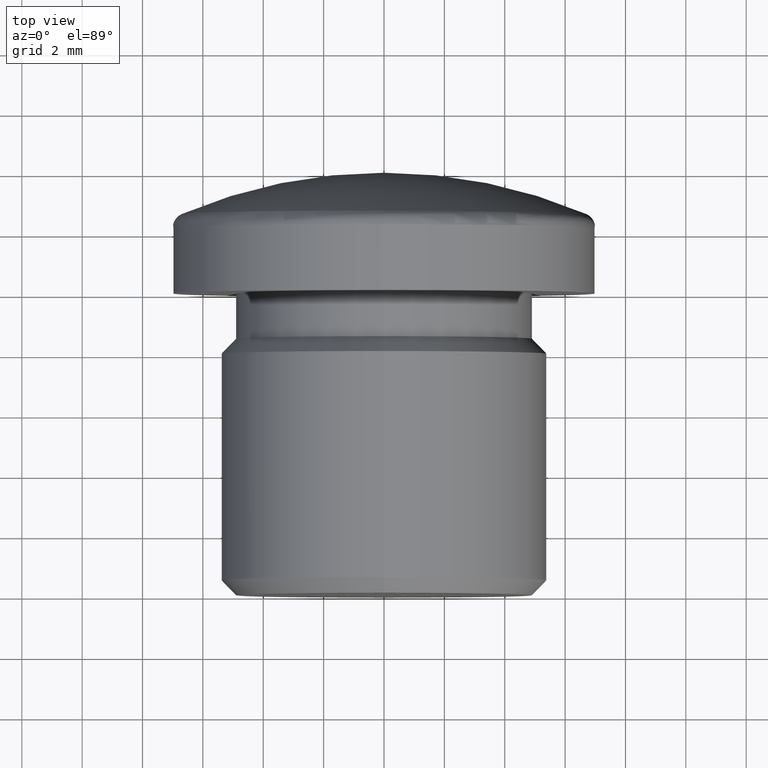
[diagram: clean part render]
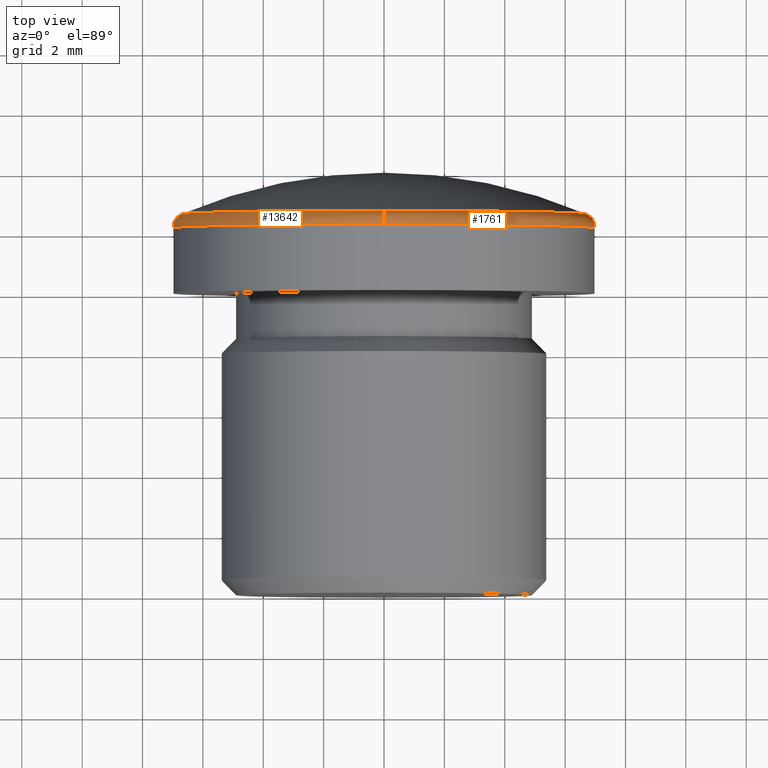
[diagram: same view with one multi-face feature highlighted, each face labeled with its STEP entity id]
A machine part, top view. The highlighted faces form ONE feature: a constant-radius fillet chain: 2 tangent blend faces with common blend radius 0.5 mm. The faces share edges in the B-rep.
Their STEP definitions:
[1] entity #13642 (Torus):
#123 = CARTESIAN_POINT ( 'NONE',  ( 0.0000000000000000000, 12.63303173506918500, -6.695979899497487500 ) ) ;
#312 = AXIS2_PLACEMENT_3D ( 'NONE', #7798, #11296, #4549 ) ;
#796 = DIRECTION ( 'NONE',  ( 0.0000000000000000000, 0.0000000000000000000, -1.000000000000000000 ) ) ;
#1061 = DIRECTION ( 'NONE',  ( -0.0000000000000000000, -1.000000000000000000, -0.0000000000000000000 ) ) ;
#1352 = VERTEX_POINT ( 'NONE', #123 ) ;
#1384 = EDGE_CURVE ( 'NONE', #11603, #12416, #13295, .T. ) ;
#1560 = AXIS2_PLACEMENT_3D ( 'NONE', #5250, #11890, #796 ) ;
#1908 = EDGE_CURVE ( 'NONE', #1352, #8156, #13113, .T. ) ;
#1980 = EDGE_CURVE ( 'NONE', #1352, #9839, #12246, .T. ) ;
#2622 = CARTESIAN_POINT ( 'NONE',  ( 7.960204194457790500E-016, 12.17304056233545900, 6.499999999999997300 ) ) ;
#2970 = AXIS2_PLACEMENT_3D ( 'NONE', #8734, #3177, #14289 ) ;
#3177 = DIRECTION ( 'NONE',  ( -1.000000000000000000, 0.0000000000000000000, 0.0000000000000000000 ) ) ;
#3655 = ORIENTED_EDGE ( 'NONE', *, *, #3662, .F. ) ;
#3662 = EDGE_CURVE ( 'NONE', #12416, #8156, #4738, .T. ) ;
#4290 = FACE_OUTER_BOUND ( 'NONE', #13817, .T. ) ;
#4549 = DIRECTION ( 'NONE',  ( 0.0000000000000000000, 0.0000000000000000000, -1.000000000000000000 ) ) ;
#4679 = CARTESIAN_POINT ( 'NONE',  ( -6.695979899497491900, 12.63303173506918500, 8.200210351074618600E-016 ) ) ;
#4738 = CIRCLE ( 'NONE', #12469, 6.999999999999997300 ) ;
#5062 = DIRECTION ( 'NONE',  ( 1.000000000000000000, 0.0000000000000000000, -1.224646799147353000E-016 ) ) ;
#5250 = CARTESIAN_POINT ( 'NONE',  ( 0.0000000000000000000, 12.63303173506918500, 0.0000000000000000000 ) ) ;
#5445 = CARTESIAN_POINT ( 'NONE',  ( 8.572527594031470200E-016, 12.17304056233545900, 6.999999999999997300 ) ) ;
#5517 = CARTESIAN_POINT ( 'NONE',  ( 0.0000000000000000000, 12.17304056233545900, 0.0000000000000000000 ) ) ;
#6608 = DIRECTION ( 'NONE',  ( 0.0000000000000000000, 0.0000000000000000000, -1.000000000000000000 ) ) ;
#7227 = CIRCLE ( 'NONE', #1560, 6.695979899497487500 ) ;
#7382 = ORIENTED_EDGE ( 'NONE', *, *, #1384, .F. ) ;
#7444 = CARTESIAN_POINT ( 'NONE',  ( 8.386368972553040500E-016, 12.63303173506918500, 6.695979899497487500 ) ) ;
#7798 = CARTESIAN_POINT ( 'NONE',  ( 0.0000000000000000000, 12.63303173506918500, 0.0000000000000000000 ) ) ;
#8156 = VERTEX_POINT ( 'NONE', #14322 ) ;
#8734 = CARTESIAN_POINT ( 'NONE',  ( 0.0000000000000000000, 12.17304056233545900, -6.499999999999997300 ) ) ;
#8788 = ORIENTED_EDGE ( 'NONE', *, *, #1908, .T. ) ;
#9717 = AXIS2_PLACEMENT_3D ( 'NONE', #5517, #12130, #6608 ) ;
#9839 = VERTEX_POINT ( 'NONE', #4679 ) ;
#10445 = EDGE_CURVE ( 'NONE', #9839, #11603, #7227, .T. ) ;
#11296 = DIRECTION ( 'NONE',  ( 0.0000000000000000000, 1.000000000000000000, 0.0000000000000000000 ) ) ;
#11545 = ORIENTED_EDGE ( 'NONE', *, *, #1980, .F. ) ;
#11603 = VERTEX_POINT ( 'NONE', #7444 ) ;
#11697 = DIRECTION ( 'NONE',  ( -1.224646799147351500E-016, 0.0000000000000000000, -1.000000000000000000 ) ) ;
#11890 = DIRECTION ( 'NONE',  ( 0.0000000000000000000, 1.000000000000000000, 0.0000000000000000000 ) ) ;
#12130 = DIRECTION ( 'NONE',  ( -0.0000000000000000000, -1.000000000000000000, -0.0000000000000000000 ) ) ;
#12246 = CIRCLE ( 'NONE', #312, 6.695979899497487500 ) ;
#12416 = VERTEX_POINT ( 'NONE', #5445 ) ;
#12469 = AXIS2_PLACEMENT_3D ( 'NONE', #13393, #1061, #13342 ) ;
#12930 = ORIENTED_EDGE ( 'NONE', *, *, #10445, .F. ) ;
#13113 = CIRCLE ( 'NONE', #2970, 0.5000000000000004400 ) ;
#13294 = TOROIDAL_SURFACE ( 'NONE', #9717, 6.499999999999997300, 0.5000000000000000000 ) ;
#13295 = CIRCLE ( 'NONE', #14053, 0.5000000000000004400 ) ;
#13342 = DIRECTION ( 'NONE',  ( 0.0000000000000000000, 0.0000000000000000000, -1.000000000000000000 ) ) ;
#13393 = CARTESIAN_POINT ( 'NONE',  ( 0.0000000000000000000, 12.17304056233545900, 0.0000000000000000000 ) ) ;
#13642 = ADVANCED_FACE ( 'NONE', ( #4290 ), #13294, .T. ) ;
#13817 = EDGE_LOOP ( 'NONE', ( #7382, #12930, #11545, #8788, #3655 ) ) ;
#14053 = AXIS2_PLACEMENT_3D ( 'NONE', #2622, #5062, #11697 ) ;
#14289 = DIRECTION ( 'NONE',  ( 0.0000000000000000000, 0.0000000000000000000, 1.000000000000000000 ) ) ;
#14322 = CARTESIAN_POINT ( 'NONE',  ( 0.0000000000000000000, 12.17304056233545900, -6.999999999999997300 ) ) ;
[2] entity #1761 (Torus):
#123 = CARTESIAN_POINT ( 'NONE',  ( 0.0000000000000000000, 12.63303173506918500, -6.695979899497487500 ) ) ;
#724 = AXIS2_PLACEMENT_3D ( 'NONE', #8073, #12576, #5724 ) ;
#1352 = VERTEX_POINT ( 'NONE', #123 ) ;
#1384 = EDGE_CURVE ( 'NONE', #11603, #12416, #13295, .T. ) ;
#1761 = ADVANCED_FACE ( 'NONE', ( #12441 ), #10494, .T. ) ;
#1908 = EDGE_CURVE ( 'NONE', #1352, #8156, #13113, .T. ) ;
#2497 = ORIENTED_EDGE ( 'NONE', *, *, #1384, .T. ) ;
#2622 = CARTESIAN_POINT ( 'NONE',  ( 7.960204194457790500E-016, 12.17304056233545900, 6.499999999999997300 ) ) ;
#2970 = AXIS2_PLACEMENT_3D ( 'NONE', #8734, #3177, #14289 ) ;
#3111 = ORIENTED_EDGE ( 'NONE', *, *, #11477, .F. ) ;
#3177 = DIRECTION ( 'NONE',  ( -1.000000000000000000, 0.0000000000000000000, 0.0000000000000000000 ) ) ;
#3278 = AXIS2_PLACEMENT_3D ( 'NONE', #13988, #7259, #8376 ) ;
#3502 = ORIENTED_EDGE ( 'NONE', *, *, #10310, .F. ) ;
#4918 = DIRECTION ( 'NONE',  ( -0.0000000000000000000, -1.000000000000000000, -0.0000000000000000000 ) ) ;
#5062 = DIRECTION ( 'NONE',  ( 1.000000000000000000, 0.0000000000000000000, -1.224646799147353000E-016 ) ) ;
#5445 = CARTESIAN_POINT ( 'NONE',  ( 8.572527594031470200E-016, 12.17304056233545900, 6.999999999999997300 ) ) ;
#5724 = DIRECTION ( 'NONE',  ( 0.0000000000000000000, 0.0000000000000000000, -1.000000000000000000 ) ) ;
#5800 = ORIENTED_EDGE ( 'NONE', *, *, #1908, .F. ) ;
#7066 = CIRCLE ( 'NONE', #3278, 6.695979899497487500 ) ;
#7259 = DIRECTION ( 'NONE',  ( 0.0000000000000000000, 1.000000000000000000, 0.0000000000000000000 ) ) ;
#7444 = CARTESIAN_POINT ( 'NONE',  ( 8.386368972553040500E-016, 12.63303173506918500, 6.695979899497487500 ) ) ;
#7606 = EDGE_LOOP ( 'NONE', ( #11675, #2497, #3111, #5800, #3502 ) ) ;
#8073 = CARTESIAN_POINT ( 'NONE',  ( 0.0000000000000000000, 12.17304056233545900, 0.0000000000000000000 ) ) ;
#8156 = VERTEX_POINT ( 'NONE', #14322 ) ;
#8376 = DIRECTION ( 'NONE',  ( 0.0000000000000000000, 0.0000000000000000000, -1.000000000000000000 ) ) ;
#8680 = VERTEX_POINT ( 'NONE', #12331 ) ;
#8734 = CARTESIAN_POINT ( 'NONE',  ( 0.0000000000000000000, 12.17304056233545900, -6.499999999999997300 ) ) ;
#10088 = AXIS2_PLACEMENT_3D ( 'NONE', #10576, #4918, #10622 ) ;
#10310 = EDGE_CURVE ( 'NONE', #8680, #1352, #7066, .T. ) ;
#10494 = TOROIDAL_SURFACE ( 'NONE', #10088, 6.499999999999997300, 0.5000000000000000000 ) ;
#10576 = CARTESIAN_POINT ( 'NONE',  ( 0.0000000000000000000, 12.17304056233545900, 0.0000000000000000000 ) ) ;
#10622 = DIRECTION ( 'NONE',  ( 0.0000000000000000000, 0.0000000000000000000, -1.000000000000000000 ) ) ;
#11069 = AXIS2_PLACEMENT_3D ( 'NONE', #11219, #11121, #14606 ) ;
#11121 = DIRECTION ( 'NONE',  ( 0.0000000000000000000, 1.000000000000000000, 0.0000000000000000000 ) ) ;
#11219 = CARTESIAN_POINT ( 'NONE',  ( 0.0000000000000000000, 12.63303173506918500, 0.0000000000000000000 ) ) ;
#11477 = EDGE_CURVE ( 'NONE', #8156, #12416, #12810, .T. ) ;
#11603 = VERTEX_POINT ( 'NONE', #7444 ) ;
#11675 = ORIENTED_EDGE ( 'NONE', *, *, #14563, .F. ) ;
#11697 = DIRECTION ( 'NONE',  ( -1.224646799147351500E-016, 0.0000000000000000000, -1.000000000000000000 ) ) ;
#12331 = CARTESIAN_POINT ( 'NONE',  ( 6.695979899497491900, 12.63303173506918500, 0.0000000000000000000 ) ) ;
#12416 = VERTEX_POINT ( 'NONE', #5445 ) ;
#12441 = FACE_OUTER_BOUND ( 'NONE', #7606, .T. ) ;
#12576 = DIRECTION ( 'NONE',  ( -0.0000000000000000000, -1.000000000000000000, -0.0000000000000000000 ) ) ;
#12810 = CIRCLE ( 'NONE', #724, 6.999999999999997300 ) ;
#13107 = CIRCLE ( 'NONE', #11069, 6.695979899497487500 ) ;
#13113 = CIRCLE ( 'NONE', #2970, 0.5000000000000004400 ) ;
#13295 = CIRCLE ( 'NONE', #14053, 0.5000000000000004400 ) ;
#13988 = CARTESIAN_POINT ( 'NONE',  ( 0.0000000000000000000, 12.63303173506918500, 0.0000000000000000000 ) ) ;
#14053 = AXIS2_PLACEMENT_3D ( 'NONE', #2622, #5062, #11697 ) ;
#14289 = DIRECTION ( 'NONE',  ( 0.0000000000000000000, 0.0000000000000000000, 1.000000000000000000 ) ) ;
#14322 = CARTESIAN_POINT ( 'NONE',  ( 0.0000000000000000000, 12.17304056233545900, -6.999999999999997300 ) ) ;
#14563 = EDGE_CURVE ( 'NONE', #11603, #8680, #13107, .T. ) ;
#14606 = DIRECTION ( 'NONE',  ( 0.0000000000000000000, 0.0000000000000000000, -1.000000000000000000 ) ) ;